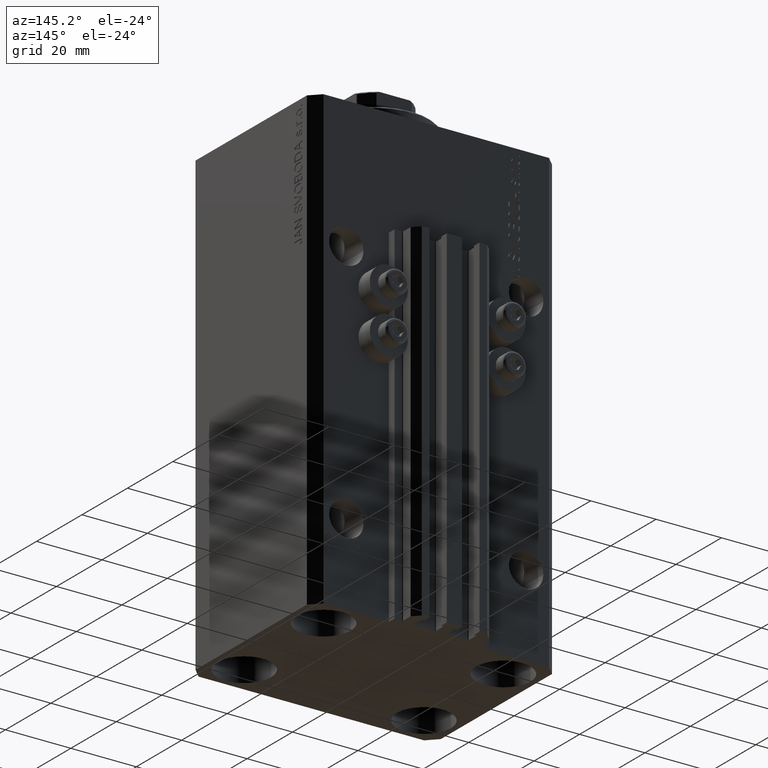
[diagram: clean part render]
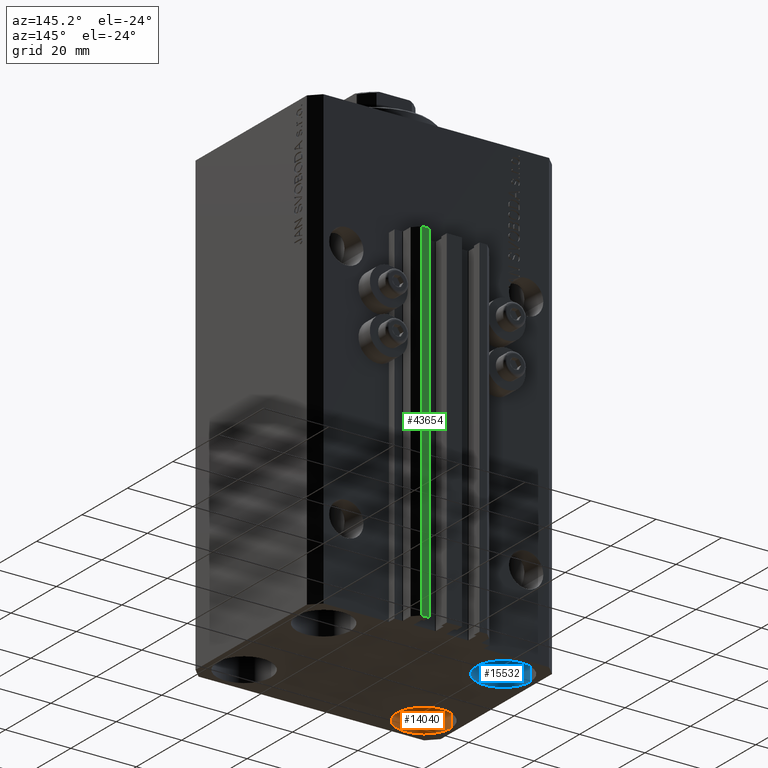
[diagram: same view with three faces highlighted in distinct colors, each labeled with its STEP entity id]
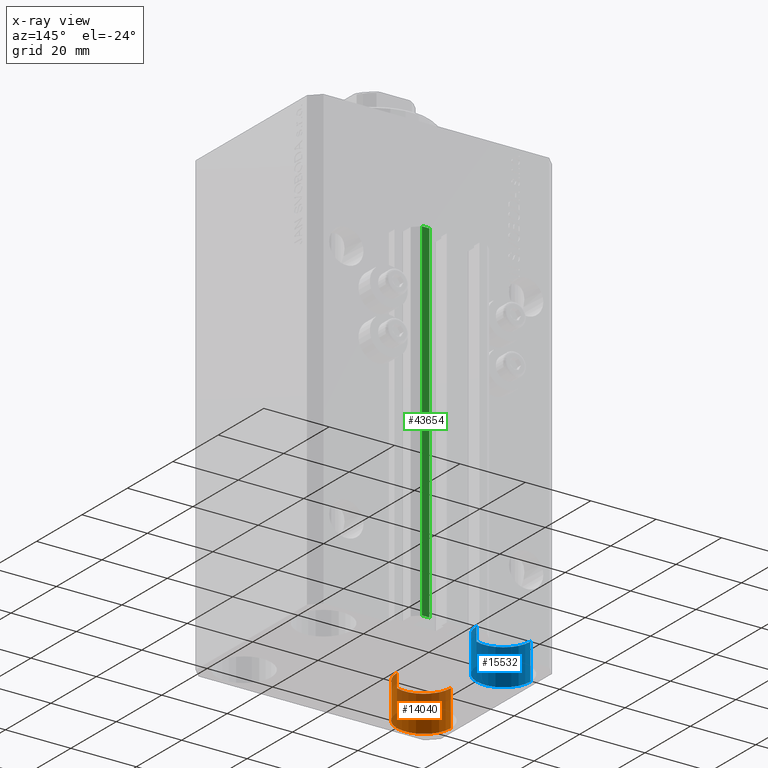
[diagram: x-ray of the same camera — body ghosted, the three highlighted faces saturated]
A machine part, auxiliary view with three faces highlighted in distinct colors.
The next image is the same camera in x-ray (body ghosted, the three faces saturated) — at least one of them is partly hidden behind the body in this view.
Their STEP definitions:

[orange] entity #14040 — the highlighted cylindrical surface (edge-blend (fillet) strip) has radius 8.25 mm, axis along (-0, -0, -1).
#765 = CARTESIAN_POINT ( 'NONE',  ( -27.50000000000000355, -17.50000000000000000, -140.0000000000000000 ) ) ;
#1218 = LINE ( 'NONE', #15115, #14728 ) ;
#2799 = EDGE_CURVE ( 'NONE', #23764, #14602, #15434, .T. ) ;
#4957 = EDGE_CURVE ( 'NONE', #25654, #14602, #27416, .T. ) ;
#6289 = ORIENTED_EDGE ( 'NONE', *, *, #4957, .F. ) ;
#7797 = AXIS2_PLACEMENT_3D ( 'NONE', #39243, #27760, #42816 ) ;
#8495 = CARTESIAN_POINT ( 'NONE',  ( -19.25000000000000355, -17.50000000000000000, -129.0000000000000000 ) ) ;
#13152 = CYLINDRICAL_SURFACE ( 'NONE', #7797, 8.250000000000000000 ) ;
#13519 = DIRECTION ( 'NONE',  ( 1.000000000000000000, 0.000000000000000000, 0.000000000000000000 ) ) ;
#13827 = CARTESIAN_POINT ( 'NONE',  ( -19.25000000000000355, -17.50000000000000000, -129.0000000000000000 ) ) ;
#14040 = ADVANCED_FACE ( 'NONE', ( #31358 ), #13152, .F. ) ;
#14434 = AXIS2_PLACEMENT_3D ( 'NONE', #765, #33821, #19448 ) ;
#14502 = VECTOR ( 'NONE', #27158, 1000.000000000000000 ) ;
#14602 = VERTEX_POINT ( 'NONE', #25986 ) ;
#14728 = VECTOR ( 'NONE', #37627, 1000.000000000000000 ) ;
#15115 = CARTESIAN_POINT ( 'NONE',  ( -35.75000000000000711, -17.50000000000000000, -129.0000000000000000 ) ) ;
#15434 = LINE ( 'NONE', #8495, #14502 ) ;
#15870 = EDGE_CURVE ( 'NONE', #27535, #25654, #1218, .T. ) ;
#19448 = DIRECTION ( 'NONE',  ( 1.000000000000000000, 0.000000000000000000, 0.000000000000000000 ) ) ;
#21659 = ORIENTED_EDGE ( 'NONE', *, *, #15870, .F. ) ;
#22559 = EDGE_LOOP ( 'NONE', ( #31688, #34246, #6289, #21659 ) ) ;
#23764 = VERTEX_POINT ( 'NONE', #13827 ) ;
#24541 = DIRECTION ( 'NONE',  ( -0.000000000000000000, -0.000000000000000000, 1.000000000000000000 ) ) ;
#25167 = CARTESIAN_POINT ( 'NONE',  ( -35.75000000000000711, -17.50000000000000000, -140.0000000000000000 ) ) ;
#25654 = VERTEX_POINT ( 'NONE', #25167 ) ;
#25986 = CARTESIAN_POINT ( 'NONE',  ( -19.25000000000000355, -17.50000000000000000, -140.0000000000000000 ) ) ;
#27158 = DIRECTION ( 'NONE',  ( -0.000000000000000000, -0.000000000000000000, -1.000000000000000000 ) ) ;
#27416 = CIRCLE ( 'NONE', #14434, 8.250000000000000000 ) ;
#27535 = VERTEX_POINT ( 'NONE', #36507 ) ;
#27760 = DIRECTION ( 'NONE',  ( -0.000000000000000000, -0.000000000000000000, -1.000000000000000000 ) ) ;
#31358 = FACE_OUTER_BOUND ( 'NONE', #22559, .T. ) ;
#31688 = ORIENTED_EDGE ( 'NONE', *, *, #35712, .T. ) ;
#32088 = AXIS2_PLACEMENT_3D ( 'NONE', #46553, #24541, #13519 ) ;
#33821 = DIRECTION ( 'NONE',  ( -0.000000000000000000, -0.000000000000000000, 1.000000000000000000 ) ) ;
#34246 = ORIENTED_EDGE ( 'NONE', *, *, #2799, .T. ) ;
#35139 = CIRCLE ( 'NONE', #32088, 8.250000000000000000 ) ;
#35712 = EDGE_CURVE ( 'NONE', #27535, #23764, #35139, .T. ) ;
#36507 = CARTESIAN_POINT ( 'NONE',  ( -35.75000000000000711, -17.50000000000000000, -129.0000000000000000 ) ) ;
#37627 = DIRECTION ( 'NONE',  ( -0.000000000000000000, -0.000000000000000000, -1.000000000000000000 ) ) ;
#39243 = CARTESIAN_POINT ( 'NONE',  ( -27.50000000000000355, -17.50000000000000000, -129.0000000000000000 ) ) ;
#42816 = DIRECTION ( 'NONE',  ( -1.000000000000000000, 0.000000000000000000, 0.000000000000000000 ) ) ;
#46553 = CARTESIAN_POINT ( 'NONE',  ( -27.50000000000000355, -17.50000000000000000, -129.0000000000000000 ) ) ;

[blue] entity #15532 — the highlighted cylindrical surface (edge-blend (fillet) strip) has radius 8.25 mm, axis along (-0, -0, -1).
#302 = LINE ( 'NONE', #15131, #26673 ) ;
#1322 = EDGE_CURVE ( 'NONE', #25583, #42034, #37803, .T. ) ;
#1816 = CYLINDRICAL_SURFACE ( 'NONE', #43021, 8.250000000000000000 ) ;
#2007 = ORIENTED_EDGE ( 'NONE', *, *, #43922, .T. ) ;
#4383 = EDGE_CURVE ( 'NONE', #34674, #42034, #43590, .T. ) ;
#6720 = CARTESIAN_POINT ( 'NONE',  ( -19.25000000000000355, 17.50000000000000000, -129.0000000000000000 ) ) ;
#9250 = FACE_OUTER_BOUND ( 'NONE', #36770, .T. ) ;
#11707 = DIRECTION ( 'NONE',  ( 1.000000000000000000, 0.000000000000000000, 0.000000000000000000 ) ) ;
#14588 = DIRECTION ( 'NONE',  ( -0.000000000000000000, -0.000000000000000000, 1.000000000000000000 ) ) ;
#14906 = DIRECTION ( 'NONE',  ( -0.000000000000000000, -0.000000000000000000, -1.000000000000000000 ) ) ;
#15131 = CARTESIAN_POINT ( 'NONE',  ( -35.75000000000000711, 17.50000000000000000, -129.0000000000000000 ) ) ;
#15532 = ADVANCED_FACE ( 'NONE', ( #9250 ), #1816, .F. ) ;
#17010 = CIRCLE ( 'NONE', #20048, 8.250000000000000000 ) ;
#20048 = AXIS2_PLACEMENT_3D ( 'NONE', #44263, #14588, #11707 ) ;
#21147 = CARTESIAN_POINT ( 'NONE',  ( -27.50000000000000355, 17.50000000000000000, -129.0000000000000000 ) ) ;
#22733 = DIRECTION ( 'NONE',  ( -0.000000000000000000, -0.000000000000000000, 1.000000000000000000 ) ) ;
#22764 = ORIENTED_EDGE ( 'NONE', *, *, #1322, .T. ) ;
#22954 = DIRECTION ( 'NONE',  ( -0.000000000000000000, -0.000000000000000000, -1.000000000000000000 ) ) ;
#25583 = VERTEX_POINT ( 'NONE', #6720 ) ;
#26673 = VECTOR ( 'NONE', #14906, 1000.000000000000000 ) ;
#26835 = CARTESIAN_POINT ( 'NONE',  ( -35.75000000000000711, 17.50000000000000000, -129.0000000000000000 ) ) ;
#27089 = ORIENTED_EDGE ( 'NONE', *, *, #34094, .F. ) ;
#27433 = DIRECTION ( 'NONE',  ( -0.000000000000000000, -0.000000000000000000, -1.000000000000000000 ) ) ;
#27524 = AXIS2_PLACEMENT_3D ( 'NONE', #33516, #22733, #43824 ) ;
#27790 = ORIENTED_EDGE ( 'NONE', *, *, #4383, .F. ) ;
#28949 = VECTOR ( 'NONE', #22954, 1000.000000000000000 ) ;
#30152 = CARTESIAN_POINT ( 'NONE',  ( -19.25000000000000355, 17.50000000000000000, -129.0000000000000000 ) ) ;
#33516 = CARTESIAN_POINT ( 'NONE',  ( -27.50000000000000355, 17.50000000000000000, -140.0000000000000000 ) ) ;
#34094 = EDGE_CURVE ( 'NONE', #36131, #34674, #302, .T. ) ;
#34408 = CARTESIAN_POINT ( 'NONE',  ( -35.75000000000000711, 17.50000000000000000, -140.0000000000000000 ) ) ;
#34674 = VERTEX_POINT ( 'NONE', #34408 ) ;
#35070 = CARTESIAN_POINT ( 'NONE',  ( -19.25000000000000355, 17.50000000000000000, -140.0000000000000000 ) ) ;
#36131 = VERTEX_POINT ( 'NONE', #26835 ) ;
#36770 = EDGE_LOOP ( 'NONE', ( #2007, #22764, #27790, #27089 ) ) ;
#37803 = LINE ( 'NONE', #30152, #28949 ) ;
#39345 = DIRECTION ( 'NONE',  ( -1.000000000000000000, 0.000000000000000000, 0.000000000000000000 ) ) ;
#42034 = VERTEX_POINT ( 'NONE', #35070 ) ;
#43021 = AXIS2_PLACEMENT_3D ( 'NONE', #21147, #27433, #39345 ) ;
#43590 = CIRCLE ( 'NONE', #27524, 8.250000000000000000 ) ;
#43824 = DIRECTION ( 'NONE',  ( 1.000000000000000000, 0.000000000000000000, 0.000000000000000000 ) ) ;
#43922 = EDGE_CURVE ( 'NONE', #36131, #25583, #17010, .T. ) ;
#44263 = CARTESIAN_POINT ( 'NONE',  ( -27.50000000000000355, 17.50000000000000000, -129.0000000000000000 ) ) ;

[green] entity #43654 — the highlighted planar face has unit normal (0, 1, 0).
#610 = VERTEX_POINT ( 'NONE', #5565 ) ;
#2031 = CARTESIAN_POINT ( 'NONE',  ( 7.649999999999998579, 35.50000000000001421, -33.00000000000000000 ) ) ;
#3153 = CARTESIAN_POINT ( 'NONE',  ( 9.999999999999998224, 35.50000000000001421, -140.0000000000000000 ) ) ;
#5565 = CARTESIAN_POINT ( 'NONE',  ( 9.999999999999998224, 35.50000000000001421, -33.00000000000000000 ) ) ;
#7683 = VERTEX_POINT ( 'NONE', #3153 ) ;
#8035 = VERTEX_POINT ( 'NONE', #2031 ) ;
#8352 = VECTOR ( 'NONE', #42964, 1000.000000000000000 ) ;
#9233 = CARTESIAN_POINT ( 'NONE',  ( 9.999999999999998224, 35.50000000000001421, -140.0000000000000000 ) ) ;
#9394 = CARTESIAN_POINT ( 'NONE',  ( 9.999999999999998224, 35.50000000000001421, -140.0000000000000000 ) ) ;
#11455 = EDGE_CURVE ( 'NONE', #7683, #47083, #27581, .T. ) ;
#12234 = PLANE ( 'NONE',  #39122 ) ;
#12609 = LINE ( 'NONE', #34649, #35307 ) ;
#13108 = EDGE_LOOP ( 'NONE', ( #34072, #22901, #36437, #17169 ) ) ;
#17169 = ORIENTED_EDGE ( 'NONE', *, *, #42366, .T. ) ;
#22232 = VECTOR ( 'NONE', #27824, 1000.000000000000000 ) ;
#22901 = ORIENTED_EDGE ( 'NONE', *, *, #35671, .F. ) ;
#24193 = CARTESIAN_POINT ( 'NONE',  ( 9.999999999999998224, 35.50000000000001421, -140.0000000000000000 ) ) ;
#24411 = DIRECTION ( 'NONE',  ( 0.000000000000000000, 0.000000000000000000, 1.000000000000000000 ) ) ;
#27581 = LINE ( 'NONE', #9394, #22232 ) ;
#27824 = DIRECTION ( 'NONE',  ( -1.000000000000000000, 0.000000000000000000, 0.000000000000000000 ) ) ;
#30670 = FACE_OUTER_BOUND ( 'NONE', #13108, .T. ) ;
#31220 = CARTESIAN_POINT ( 'NONE',  ( 7.649999999999998579, 35.50000000000001421, -140.0000000000000000 ) ) ;
#31288 = DIRECTION ( 'NONE',  ( -1.000000000000000000, 0.000000000000000000, 0.000000000000000000 ) ) ;
#31500 = LINE ( 'NONE', #9233, #8352 ) ;
#34032 = DIRECTION ( 'NONE',  ( 0.000000000000000000, 1.000000000000000000, -0.000000000000000000 ) ) ;
#34072 = ORIENTED_EDGE ( 'NONE', *, *, #39500, .F. ) ;
#34649 = CARTESIAN_POINT ( 'NONE',  ( 9.999999999999998224, 35.50000000000001421, -33.00000000000000000 ) ) ;
#35307 = VECTOR ( 'NONE', #31288, 1000.000000000000000 ) ;
#35671 = EDGE_CURVE ( 'NONE', #7683, #610, #31500, .T. ) ;
#36437 = ORIENTED_EDGE ( 'NONE', *, *, #11455, .T. ) ;
#38312 = LINE ( 'NONE', #38785, #45984 ) ;
#38785 = CARTESIAN_POINT ( 'NONE',  ( 7.649999999999998579, 35.50000000000001421, -140.0000000000000000 ) ) ;
#39122 = AXIS2_PLACEMENT_3D ( 'NONE', #24193, #34032, #41911 ) ;
#39500 = EDGE_CURVE ( 'NONE', #610, #8035, #12609, .T. ) ;
#41911 = DIRECTION ( 'NONE',  ( 0.000000000000000000, 0.000000000000000000, 1.000000000000000000 ) ) ;
#42366 = EDGE_CURVE ( 'NONE', #47083, #8035, #38312, .T. ) ;
#42964 = DIRECTION ( 'NONE',  ( 0.000000000000000000, 0.000000000000000000, 1.000000000000000000 ) ) ;
#43654 = ADVANCED_FACE ( 'NONE', ( #30670 ), #12234, .T. ) ;
#45984 = VECTOR ( 'NONE', #24411, 1000.000000000000000 ) ;
#47083 = VERTEX_POINT ( 'NONE', #31220 ) ;